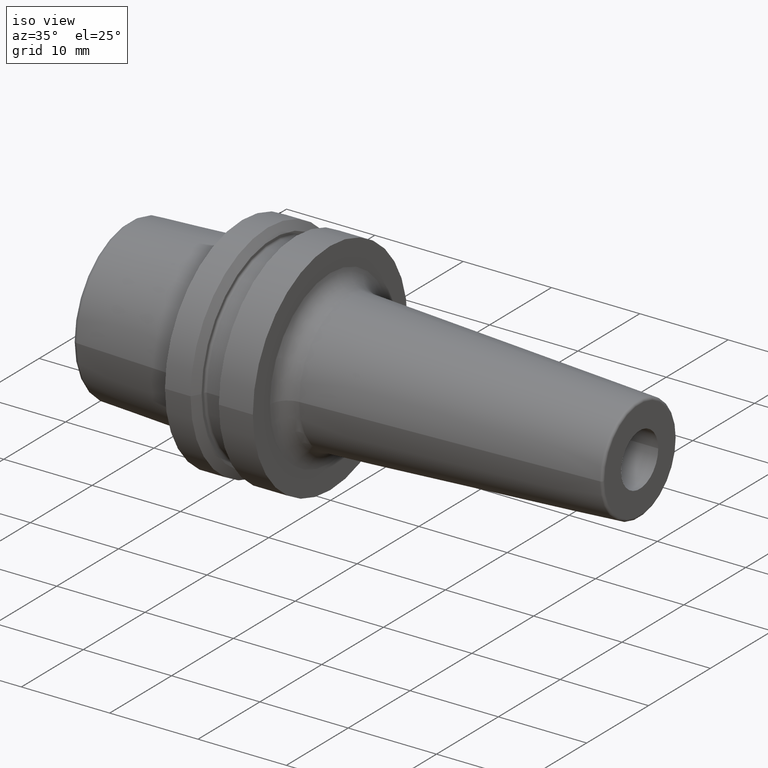
[diagram: clean part render]
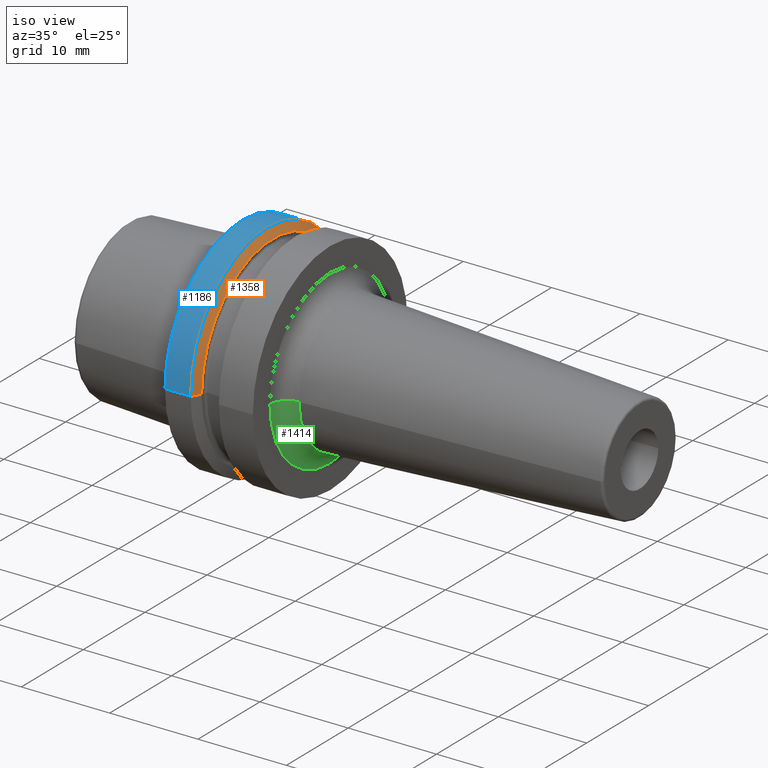
[diagram: same view with three faces highlighted in distinct colors, each labeled with its STEP entity id]
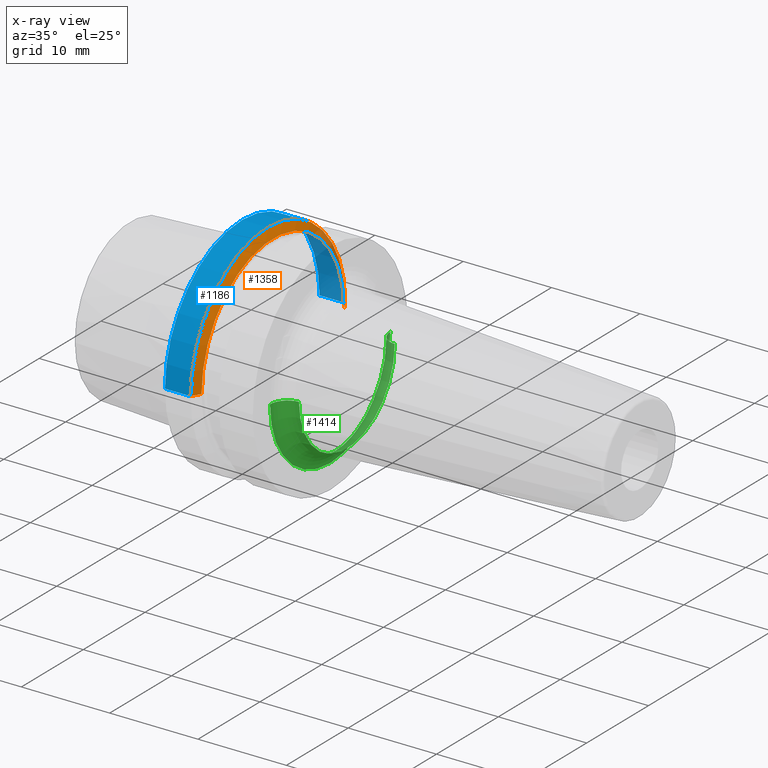
[diagram: x-ray of the same camera — body ghosted, the three highlighted faces saturated]
A machine part, iso view with three faces highlighted in distinct colors.
The next image is the same camera in x-ray (body ghosted, the three faces saturated) — at least one of them is partly hidden behind the body in this view.
Their STEP definitions:

[orange] entity #1358 — the highlighted conical surface has half-angle 60 deg.
#324=CARTESIAN_POINT('',(2.897853002999E0,0.E0,0.E0));
#325=DIRECTION('',(1.E0,0.E0,0.E0));
#326=DIRECTION('',(0.E0,1.E0,0.E0));
#327=AXIS2_PLACEMENT_3D('',#324,#325,#326);
#420=CARTESIAN_POINT('',(3.4625E0,0.E0,0.E0));
#421=DIRECTION('',(1.E0,0.E0,0.E0));
#422=DIRECTION('',(0.E0,1.E0,0.E0));
#423=AXIS2_PLACEMENT_3D('',#420,#421,#422);
#425=DIRECTION('',(5.E-1,-8.660254037844E-1,0.E0));
#426=VECTOR('',#425,1.129293994002E0);
#427=CARTESIAN_POINT('',(2.897853002999E0,1.25E1,0.E0));
#428=LINE('',#427,#426);
#429=DIRECTION('',(5.E-1,8.660254037844E-1,0.E0));
#430=VECTOR('',#429,1.129293994002E0);
#431=CARTESIAN_POINT('',(2.897853002999E0,-1.25E1,0.E0));
#432=LINE('',#431,#430);
#616=CARTESIAN_POINT('',(3.4625E0,1.152200271285E1,0.E0));
#617=CARTESIAN_POINT('',(3.4625E0,-1.152200271285E1,0.E0));
#618=VERTEX_POINT('',#616);
#619=VERTEX_POINT('',#617);
#626=CARTESIAN_POINT('',(2.897853002999E0,1.25E1,0.E0));
#627=VERTEX_POINT('',#626);
#630=CARTESIAN_POINT('',(2.897853002999E0,-1.25E1,0.E0));
#631=VERTEX_POINT('',#630);
#1347=CARTESIAN_POINT('',(3.180176501499E0,0.E0,0.E0));
#1348=DIRECTION('',(-1.E0,0.E0,0.E0));
#1349=DIRECTION('',(0.E0,1.E0,0.E0));
#1350=AXIS2_PLACEMENT_3D('',#1347,#1348,#1349);
#1351=CONICAL_SURFACE('',#1350,1.201100135643E1,6.E1);
#1352=ORIENTED_EDGE('',*,*,#1337,.T.);
#1353=ORIENTED_EDGE('',*,*,#1323,.T.);
#1354=ORIENTED_EDGE('',*,*,#1341,.F.);
#1355=ORIENTED_EDGE('',*,*,#1177,.F.);
#1356=EDGE_LOOP('',(#1352,#1353,#1354,#1355));
#1357=FACE_OUTER_BOUND('',#1356,.F.);
#1358=ADVANCED_FACE('',(#1357),#1351,.T.);
#328=CIRCLE('',#327,1.25E1);
#424=CIRCLE('',#423,1.152200271285E1);
#1177=EDGE_CURVE('',#627,#631,#328,.T.);
#1323=EDGE_CURVE('',#618,#619,#424,.T.);
#1337=EDGE_CURVE('',#627,#618,#428,.T.);
#1341=EDGE_CURVE('',#631,#619,#432,.T.);

[blue] entity #1186 — the highlighted cylindrical surface (partial cylindrical patch) has radius 12.5 mm, axis along (1, 0, 0).
#294=CARTESIAN_POINT('',(0.E0,0.E0,0.E0));
#295=DIRECTION('',(1.E0,0.E0,0.E0));
#296=DIRECTION('',(0.E0,1.E0,0.E0));
#297=AXIS2_PLACEMENT_3D('',#294,#295,#296);
#324=CARTESIAN_POINT('',(2.897853002999E0,0.E0,0.E0));
#325=DIRECTION('',(1.E0,0.E0,0.E0));
#326=DIRECTION('',(0.E0,1.E0,0.E0));
#327=AXIS2_PLACEMENT_3D('',#324,#325,#326);
#456=DIRECTION('',(-1.E0,0.E0,0.E0));
#457=VECTOR('',#456,2.897853002999E0);
#458=CARTESIAN_POINT('',(2.897853002999E0,1.25E1,0.E0));
#459=LINE('',#458,#457);
#460=DIRECTION('',(-1.E0,0.E0,0.E0));
#461=VECTOR('',#460,2.897853002999E0);
#462=CARTESIAN_POINT('',(2.897853002999E0,-1.25E1,0.E0));
#463=LINE('',#462,#461);
#626=CARTESIAN_POINT('',(2.897853002999E0,1.25E1,0.E0));
#627=VERTEX_POINT('',#626);
#630=CARTESIAN_POINT('',(2.897853002999E0,-1.25E1,0.E0));
#631=VERTEX_POINT('',#630);
#636=CARTESIAN_POINT('',(0.E0,1.25E1,0.E0));
#637=CARTESIAN_POINT('',(0.E0,-1.25E1,0.E0));
#638=VERTEX_POINT('',#636);
#639=VERTEX_POINT('',#637);
#1172=CARTESIAN_POINT('',(-1.40425E1,0.E0,0.E0));
#1173=DIRECTION('',(1.E0,0.E0,0.E0));
#1174=DIRECTION('',(0.E0,-1.E0,0.E0));
#1175=AXIS2_PLACEMENT_3D('',#1172,#1173,#1174);
#1176=CYLINDRICAL_SURFACE('',#1175,1.25E1);
#1178=ORIENTED_EDGE('',*,*,#1177,.T.);
#1180=ORIENTED_EDGE('',*,*,#1179,.T.);
#1181=ORIENTED_EDGE('',*,*,#1145,.F.);
#1183=ORIENTED_EDGE('',*,*,#1182,.F.);
#1184=EDGE_LOOP('',(#1178,#1180,#1181,#1183));
#1185=FACE_OUTER_BOUND('',#1184,.F.);
#1186=ADVANCED_FACE('',(#1185),#1176,.T.);
#298=CIRCLE('',#297,1.25E1);
#328=CIRCLE('',#327,1.25E1);
#1145=EDGE_CURVE('',#638,#639,#298,.T.);
#1177=EDGE_CURVE('',#627,#631,#328,.T.);
#1179=EDGE_CURVE('',#631,#639,#463,.T.);
#1182=EDGE_CURVE('',#627,#638,#459,.T.);

[green] entity #1414 — the highlighted toroidal blend (fillet) surface has major radius 9.7348 mm and minor (blend) radius 2 mm.
#464=CARTESIAN_POINT('',(9.95E0,0.E0,0.E0));
#465=DIRECTION('',(1.E0,0.E0,0.E0));
#466=DIRECTION('',(0.E0,-1.E0,0.E0));
#467=AXIS2_PLACEMENT_3D('',#464,#465,#466);
#474=CARTESIAN_POINT('',(1.195E1,-9.734821797300E0,1.775884994615E-12));
#475=DIRECTION('',(0.E0,-1.824252554572E-13,-1.E0));
#476=DIRECTION('',(-1.E0,1.092459456231E-13,0.E0));
#477=AXIS2_PLACEMENT_3D('',#474,#475,#476);
#479=CARTESIAN_POINT('',(1.195E1,9.734821797300E0,-1.777036851003E-12));
#480=DIRECTION('',(0.E0,1.825432166536E-13,1.E0));
#481=DIRECTION('',(-1.E0,-1.092459456231E-13,0.E0));
#482=AXIS2_PLACEMENT_3D('',#479,#480,#481);
#513=CARTESIAN_POINT('',(1.184532808751E1,0.E0,0.E0));
#514=DIRECTION('',(1.E0,0.E0,0.E0));
#515=DIRECTION('',(0.E0,-1.E0,0.E0));
#516=AXIS2_PLACEMENT_3D('',#513,#514,#515);
#668=CARTESIAN_POINT('',(9.95E0,-9.734821797300E0,0.E0));
#669=CARTESIAN_POINT('',(9.95E0,9.734821797300E0,0.E0));
#670=VERTEX_POINT('',#668);
#671=VERTEX_POINT('',#669);
#672=CARTESIAN_POINT('',(1.184532808751E1,-7.737562727791E0,0.E0));
#673=CARTESIAN_POINT('',(1.184532808751E1,7.737562727791E0,0.E0));
#674=VERTEX_POINT('',#672);
#675=VERTEX_POINT('',#673);
#1400=CARTESIAN_POINT('',(1.195E1,0.E0,0.E0));
#1401=DIRECTION('',(1.E0,0.E0,0.E0));
#1402=DIRECTION('',(0.E0,-9.999382523659E-1,1.111267094322E-2));
#1403=AXIS2_PLACEMENT_3D('',#1400,#1401,#1402);
#1404=TOROIDAL_SURFACE('',#1403,9.734821797300E0,2.E0);
#1405=ORIENTED_EDGE('',*,*,#1393,.F.);
#1407=ORIENTED_EDGE('',*,*,#1406,.T.);
#1409=ORIENTED_EDGE('',*,*,#1408,.T.);
#1411=ORIENTED_EDGE('',*,*,#1410,.F.);
#1412=EDGE_LOOP('',(#1405,#1407,#1409,#1411));
#1413=FACE_OUTER_BOUND('',#1412,.F.);
#1414=ADVANCED_FACE('',(#1413),#1404,.F.);
#468=CIRCLE('',#467,9.734821797300E0);
#478=CIRCLE('',#477,2.E0);
#483=CIRCLE('',#482,2.E0);
#517=CIRCLE('',#516,7.737562727791E0);
#1393=EDGE_CURVE('',#670,#671,#468,.T.);
#1406=EDGE_CURVE('',#670,#674,#478,.T.);
#1408=EDGE_CURVE('',#674,#675,#517,.T.);
#1410=EDGE_CURVE('',#671,#675,#483,.T.);